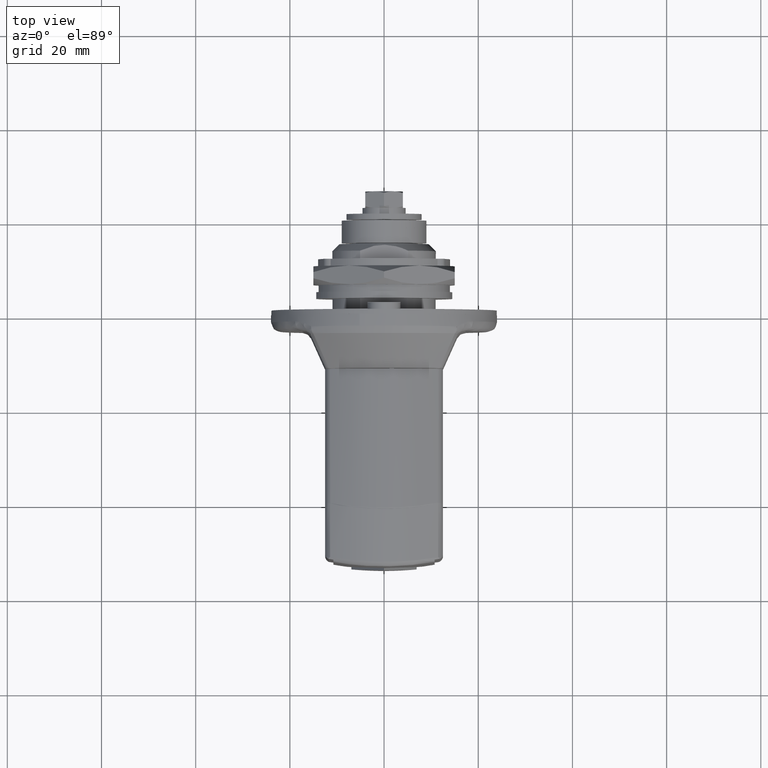
[diagram: clean part render]
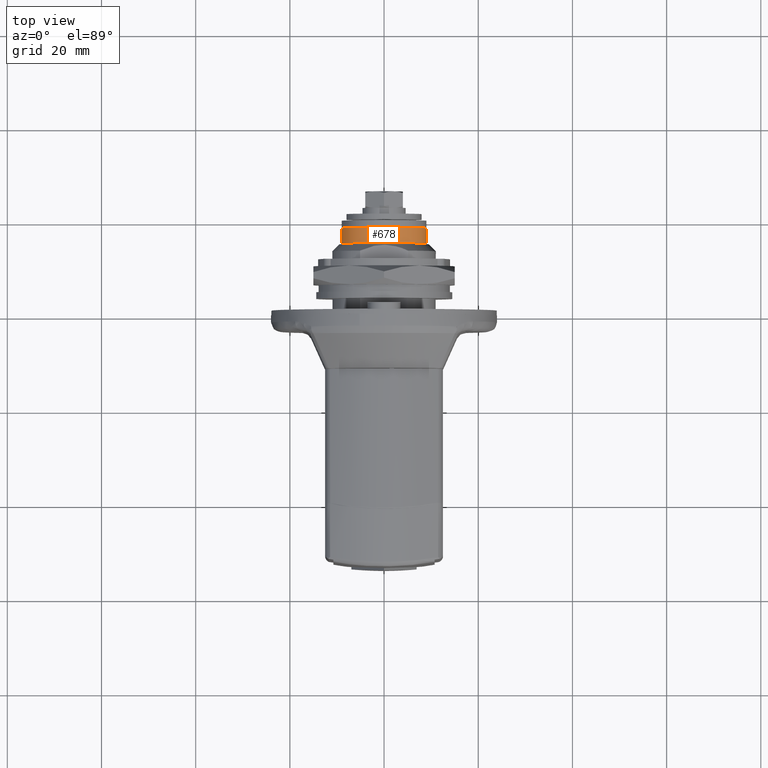
[diagram: same view with one face highlighted and labeled with its STEP entity id]
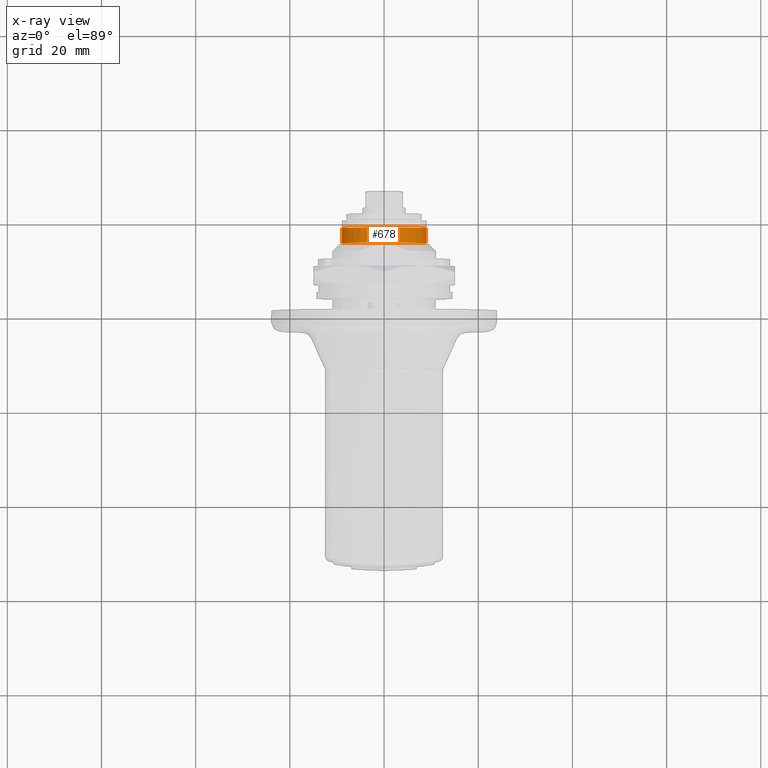
[diagram: x-ray of the same camera — body ghosted, the highlighted face saturated]
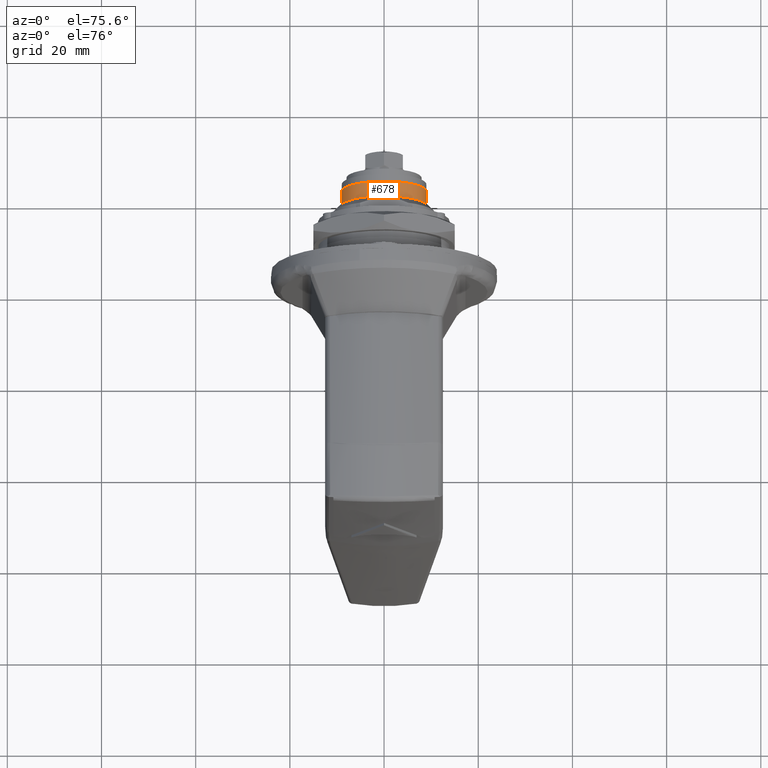
[diagram: same view with one face highlighted and labeled with its STEP entity id]
A machine part, top view. The second image highlights one B-rep face of the part: STEP entity #678.
The next image is the same camera in x-ray: the body ghosted, the highlighted face saturated — about 0% of this face is hidden behind the body in this view.
A second angle (auxiliary view) of the same face is appended — the face is thin or edge-on in the first view.
In plain terms, the highlighted face is a freeform B-spline surface patch.
Its self-contained STEP definition (entity closure, byte-faithful):
#515=CARTESIAN_POINT('',(101.068713000000000,-8.937085737240864,1.062308112182602));
#516=VERTEX_POINT('',#515);
#534=CARTESIAN_POINT('',(97.868712999999985,-8.937085737240864,1.062308112182602));
#535=VERTEX_POINT('',#534);
#536=CARTESIAN_POINT('',(97.868712999999985,-8.937085737240864,1.062308112182602));
#537=CARTESIAN_POINT('',(101.068713000000000,-8.937085737240864,1.062308112182602));
#538=QUASI_UNIFORM_CURVE('',1,(#536,#537),.UNSPECIFIED.,.F.,.U.);
#539=EDGE_CURVE('',#535,#516,#538,.T.);
#558=CARTESIAN_POINT('',(97.868713000000000,8.983213185790444,-0.549436855920451));
#559=VERTEX_POINT('',#558);
#573=CARTESIAN_POINT('',(101.068713000000000,8.983213185790444,-0.549436855920451));
#574=VERTEX_POINT('',#573);
#575=CARTESIAN_POINT('',(97.868713000000000,8.983213185790444,-0.549436855920451));
#576=CARTESIAN_POINT('',(101.068713000000000,8.983213185790444,-0.549436855920451));
#577=QUASI_UNIFORM_CURVE('',1,(#575,#576),.UNSPECIFIED.,.F.,.U.);
#578=EDGE_CURVE('',#559,#574,#577,.T.);
#596=CARTESIAN_POINT('',(97.788712999999987,8.983213185796970,-0.549436855813723));
#597=CARTESIAN_POINT('',(97.788712999999987,9.532650041610694,8.433776329983246));
#598=CARTESIAN_POINT('',(97.788712999999987,0.549436855813723,8.983213185796970));
#599=CARTESIAN_POINT('',(97.788712999999973,-7.933891417555658,9.502075770592926));
#600=CARTESIAN_POINT('',(97.788713000000016,-8.937085737273165,1.062308111910846));
#601=CARTESIAN_POINT('',(101.150713000000000,8.983213185796970,-0.549436855813723));
#602=CARTESIAN_POINT('',(101.150713000000020,9.532650041610694,8.433776329983246));
#603=CARTESIAN_POINT('',(101.150713000000000,0.549436855813723,8.983213185796970));
#604=CARTESIAN_POINT('',(101.150713000000040,-7.933891417555658,9.502075770592926));
#605=CARTESIAN_POINT('',(101.150713000000020,-8.937085737273165,1.062308111910846));
#613=(BOUNDED_SURFACE()B_SPLINE_SURFACE(2,1,((#596,#601),(#597,#602),(#598,#603),(#599,#604),(#600,#605)),.UNSPECIFIED.,.F.,.F.,.U.)B_SPLINE_SURFACE_WITH_KNOTS((3,2,3),(2,2),(0.0,14.911688245431700,29.226908961046131),(0.0,3.362000000000041),.UNSPECIFIED.)GEOMETRIC_REPRESENTATION_ITEM()RATIONAL_B_SPLINE_SURFACE(((1.0,1.0),(0.707106781186548,0.707106781186548),(1.0,1.0),(0.718822509939086,0.718822509939086),(0.977505800795127,0.977505800795127)))REPRESENTATION_ITEM('')SURFACE());
#614=CARTESIAN_POINT('',(101.068713000000000,0.0,9.000000000000169));
#615=VERTEX_POINT('',#614);
#616=CARTESIAN_POINT('',(101.068713000000000,0.0,9.000000000000169));
#617=CARTESIAN_POINT('',(101.068713000000000,-7.993570733072910,9.000000000000169));
#618=CARTESIAN_POINT('',(101.068713000000000,-8.937085737240864,1.062308112182602));
#626=(BOUNDED_CURVE()B_SPLINE_CURVE(2,(#616,#617,#618),.UNSPECIFIED.,.F.,.U.)B_SPLINE_CURVE_WITH_KNOTS((3,3),(0.0,0.229562473505366),.UNSPECIFIED.)CURVE()GEOMETRIC_REPRESENTATION_ITEM()RATIONAL_B_SPLINE_CURVE((1.0,0.731050832864941,0.956026754167741))REPRESENTATION_ITEM(''));
#627=EDGE_CURVE('',#615,#516,#626,.T.);
#628=ORIENTED_EDGE('',*,*,#627,.F.);
#629=CARTESIAN_POINT('',(101.068713000000000,8.983213185790444,-0.549436855920451));
#630=CARTESIAN_POINT('',(101.068712999999990,9.000000000000167,-0.274974869794333));
#631=CARTESIAN_POINT('',(101.068713000000000,9.000000000000169,0.0));
#632=CARTESIAN_POINT('',(101.068713000000000,9.000000000000171,9.000000000000171));
#633=CARTESIAN_POINT('',(101.068713000000000,0.0,9.000000000000169));
#641=(BOUNDED_CURVE()B_SPLINE_CURVE(2,(#629,#630,#631,#632,#633),.UNSPECIFIED.,.F.,.U.)B_SPLINE_CURVE_WITH_KNOTS((3,2,3),(0.739332962237868,0.750000000000000,1.0),.UNSPECIFIED.)CURVE()GEOMETRIC_REPRESENTATION_ITEM()RATIONAL_B_SPLINE_CURVE((0.976072041664415,0.987502787898578,1.0,0.707106781186548,1.0))REPRESENTATION_ITEM(''));
#642=EDGE_CURVE('',#574,#615,#641,.T.);
#643=ORIENTED_EDGE('',*,*,#642,.F.);
#644=ORIENTED_EDGE('',*,*,#578,.F.);
#645=CARTESIAN_POINT('',(97.868713000000000,0.0,9.000000000000169));
#646=VERTEX_POINT('',#645);
#647=CARTESIAN_POINT('',(97.868713000000000,8.983213185790444,-0.549436855920451));
#648=CARTESIAN_POINT('',(97.868713000000000,9.000000000000167,-0.274974869794333));
#649=CARTESIAN_POINT('',(97.868713000000000,9.000000000000169,0.0));
#650=CARTESIAN_POINT('',(97.868713000000000,9.000000000000171,9.000000000000171));
#651=CARTESIAN_POINT('',(97.868713000000000,0.0,9.000000000000169));
#659=(BOUNDED_CURVE()B_SPLINE_CURVE(2,(#647,#648,#649,#650,#651),.UNSPECIFIED.,.F.,.U.)B_SPLINE_CURVE_WITH_KNOTS((3,2,3),(0.739332962237868,0.750000000000000,1.0),.UNSPECIFIED.)CURVE()GEOMETRIC_REPRESENTATION_ITEM()RATIONAL_B_SPLINE_CURVE((0.976072041664415,0.987502787898578,1.0,0.707106781186548,1.0))REPRESENTATION_ITEM(''));
#660=EDGE_CURVE('',#559,#646,#659,.T.);
#661=ORIENTED_EDGE('',*,*,#660,.T.);
#662=CARTESIAN_POINT('',(97.868713000000000,0.0,9.000000000000169));
#663=CARTESIAN_POINT('',(97.868712999999985,-7.993570733072910,9.000000000000169));
#664=CARTESIAN_POINT('',(97.868712999999985,-8.937085737240864,1.062308112182602));
#672=(BOUNDED_CURVE()B_SPLINE_CURVE(2,(#662,#663,#664),.UNSPECIFIED.,.F.,.U.)B_SPLINE_CURVE_WITH_KNOTS((3,3),(0.0,0.229562473505366),.UNSPECIFIED.)CURVE()GEOMETRIC_REPRESENTATION_ITEM()RATIONAL_B_SPLINE_CURVE((1.0,0.731050832864941,0.956026754167741))REPRESENTATION_ITEM(''));
#673=EDGE_CURVE('',#646,#535,#672,.T.);
#674=ORIENTED_EDGE('',*,*,#673,.T.);
#675=ORIENTED_EDGE('',*,*,#539,.T.);
#676=EDGE_LOOP('',(#628,#643,#644,#661,#674,#675));
#677=FACE_OUTER_BOUND('',#676,.T.);
#678=ADVANCED_FACE('',(#677),#613,.T.);